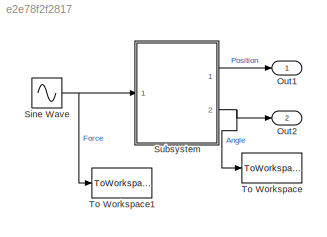
MODEL slx_e2e78f2f2817
KIND model
CONFIG AbsTol = auto
CONFIG EnableMultiTasking = on
CONFIG FixedStep = auto
CONFIG MaxStep = auto
CONFIG MinStep = auto
CONFIG RelTol = 1e-3
CONFIG SampleTimeConstraint = Unconstrained
CONFIG Solver = ode45
CONFIG SolverName = ode45
CONFIG StartTime = 0.0
CONFIG StopTime = 1
BLOCK [Outport] Out1
  IconDisplay = Port number
BLOCK [Outport] Out2
  IconDisplay = Port number
  Port = 2
BLOCK [Sin] Sine Wave
  Frequency = 10
  Ports = [0, 1]
  SampleTime = 0
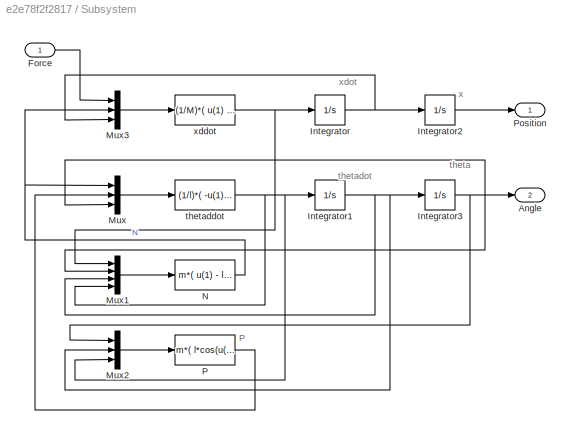
BLOCK [SubSystem] Subsystem
  Ports = [1, 2]
  RequestExecContextInheritance = off
  Variant = off
BLOCK [Outport] Subsystem/Angle
  IconDisplay = Port number
  Port = 2
BLOCK [Inport] Subsystem/Force
  IconDisplay = Port number
BLOCK [Integrator] Subsystem/Integrator
  ContinuousStateAttributes = 'xdot'
  Ports = [1, 1]
BLOCK [Integrator] Subsystem/Integrator1
  ContinuousStateAttributes = 'thetadot'
  Ports = [1, 1]
BLOCK [Integrator] Subsystem/Integrator2
  ContinuousStateAttributes = 'x'
  Ports = [1, 1]
BLOCK [Integrator] Subsystem/Integrator3
  ContinuousStateAttributes = 'theta'
  InitialCondition = pi
  Ports = [1, 1]
BLOCK [Mux] Subsystem/Mux
  DisplayOption = bar
  Inputs = 3
  Ports = [3, 1]
BLOCK [Mux] Subsystem/Mux1
  DisplayOption = bar
  Ports = [4, 1]
BLOCK [Mux] Subsystem/Mux2
  DisplayOption = bar
  Inputs = 3
  Ports = [3, 1]
BLOCK [Mux] Subsystem/Mux3
  DisplayOption = bar
  Inputs = 3
  Ports = [3, 1]
BLOCK [Fcn] Subsystem/N
  Expr = m*(  u(1) - l*sin(u(2))*(u(3)^2) + l*cos(u(2))*u(4)   )
BLOCK [Fcn] Subsystem/P
  Expr = m*(  l*cos(u(1))*(u(2)^2) + l*sin(u(1))*u(3) + g )
BLOCK [Outport] Subsystem/Position
  IconDisplay = Port number
BLOCK [Fcn] Subsystem/thetaddot
  Expr = (1/l)*( -u(1)*l*cos(u(3)) - u(2)*l*sin(u(3)) )
BLOCK [Fcn] Subsystem/xddot
  Expr = (1/M)*( u(1) - u(2) - b*u(3) )
BLOCK [ToWorkspace] To Workspace
  FixptAsFi = on
  MaxDataPoints = inf
  Ports = [1]
  SampleTime = -1
  Save2DSignal = 3-D array (concatenate along third dimension)
  SaveFormat = Timeseries
  VariableName = nl_out
BLOCK [ToWorkspace] To Workspace1
  FixptAsFi = on
  MaxDataPoints = inf
  Ports = [1]
  SampleTime = -1
  Save2DSignal = 3-D array (concatenate along third dimension)
  SaveFormat = Timeseries
  VariableName = nl_in
ANNOTATION Subsystem: P
ANNOTATION Subsystem: theta
ANNOTATION Subsystem: thetadot
ANNOTATION Subsystem: x
ANNOTATION Subsystem: xdot
NET Sine Wave:1 -> Subsystem:1, To Workspace1:1
LINE Subsystem/Force:1 -> Subsystem/Mux3:1
NET Subsystem/Integrator1:1 -> Subsystem/Integrator3:1, Subsystem/Mux1:3, Subsystem/Mux2:2
LINE Subsystem/Integrator2:1 -> Subsystem/Position:1
NET Subsystem/Integrator3:1 -> Subsystem/Angle:1, Subsystem/Mux1:2, Subsystem/Mux2:1, Subsystem/Mux:3
NET Subsystem/Integrator:1 -> Subsystem/Integrator2:1, Subsystem/Mux3:3
LINE Subsystem/Mux1:1 -> Subsystem/N:1
LINE Subsystem/Mux2:1 -> Subsystem/P:1
LINE Subsystem/Mux3:1 -> Subsystem/xddot:1
LINE Subsystem/Mux:1 -> Subsystem/thetaddot:1
NET Subsystem/N:1 -> Subsystem/Mux3:2, Subsystem/Mux:1
LINE Subsystem/P:1 -> Subsystem/Mux:2
NET Subsystem/thetaddot:1 -> Subsystem/Integrator1:1, Subsystem/Mux1:4, Subsystem/Mux2:3
NET Subsystem/xddot:1 -> Subsystem/Integrator:1, Subsystem/Mux1:1
LINE Subsystem:1 -> Out1:1
NET Subsystem:2 -> Out2:1, To Workspace:1
note: NET lines group one-source signal fan-out (src -> all destinations, sorted); 1:1 wires keep LINE
